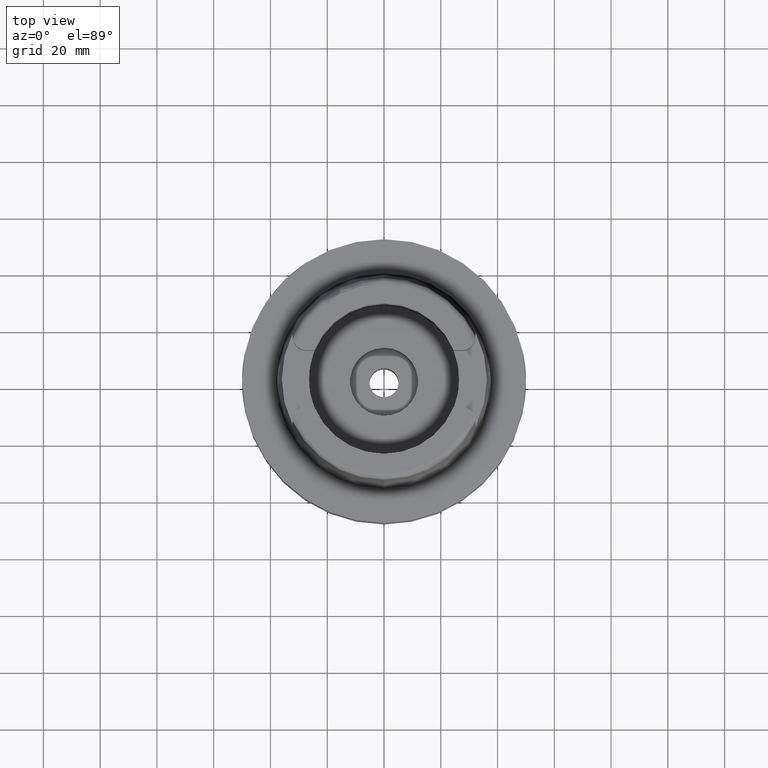
[diagram: clean part render]
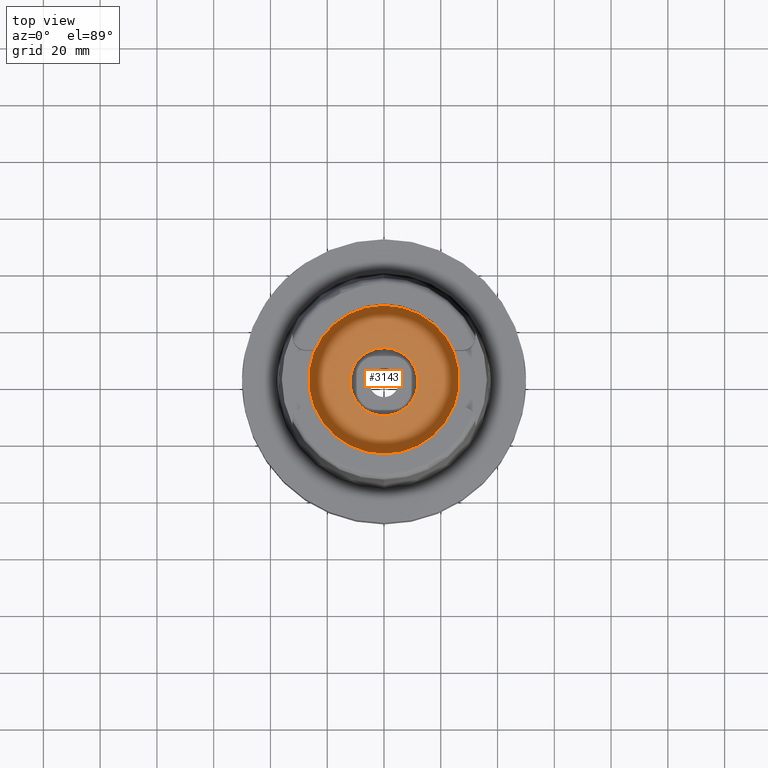
[diagram: same view with one face highlighted and labeled with its STEP entity id]
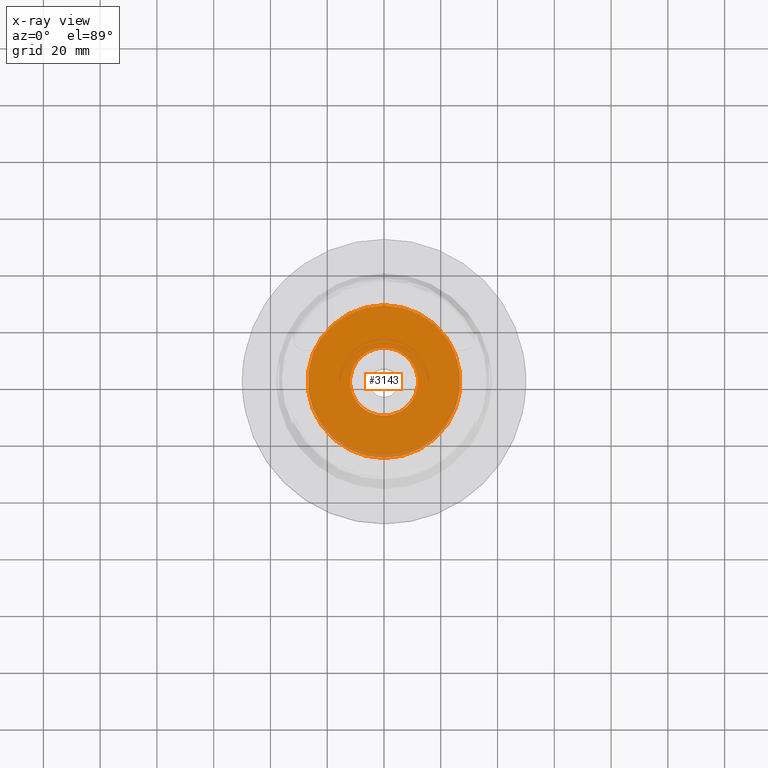
[diagram: x-ray of the same camera — body ghosted, the highlighted face saturated]
A machine part, top view. The second image highlights one B-rep face of the part: STEP entity #3143.
The next image is the same camera in x-ray: the body ghosted, the highlighted face saturated — about 5% of this face is hidden behind the body in this view.
In plain terms, the highlighted planar face has unit normal (0, 0, 1).
Its self-contained STEP definition (entity closure, byte-faithful):
#829=CARTESIAN_POINT('',(0.E0,0.E0,-1.245E1));
#830=DIRECTION('',(0.E0,0.E0,-1.E0));
#831=DIRECTION('',(0.E0,-1.E0,0.E0));
#832=AXIS2_PLACEMENT_3D('',#829,#830,#831);
#837=CARTESIAN_POINT('',(0.E0,0.E0,-1.245E1));
#838=DIRECTION('',(0.E0,0.E0,-1.E0));
#839=DIRECTION('',(0.E0,1.E0,0.E0));
#840=AXIS2_PLACEMENT_3D('',#837,#838,#839);
#845=CARTESIAN_POINT('',(0.E0,0.E0,-1.245E1));
#846=DIRECTION('',(0.E0,0.E0,1.E0));
#847=DIRECTION('',(0.E0,-1.E0,0.E0));
#848=AXIS2_PLACEMENT_3D('',#845,#846,#847);
#853=CARTESIAN_POINT('',(0.E0,0.E0,-1.245E1));
#854=DIRECTION('',(0.E0,0.E0,1.E0));
#855=DIRECTION('',(0.E0,1.E0,0.E0));
#856=AXIS2_PLACEMENT_3D('',#853,#854,#855);
#2377=CARTESIAN_POINT('',(0.E0,2.69E1,-1.245E1));
#2378=VERTEX_POINT('',#2377);
#2379=CARTESIAN_POINT('',(0.E0,-2.69E1,-1.245E1));
#2380=VERTEX_POINT('',#2379);
#2381=CARTESIAN_POINT('',(0.E0,-1.2E1,-1.245E1));
#2382=CARTESIAN_POINT('',(0.E0,1.2E1,-1.245E1));
#2383=VERTEX_POINT('',#2381);
#2384=VERTEX_POINT('',#2382);
#3128=CARTESIAN_POINT('',(0.E0,0.E0,-1.245E1));
#3129=DIRECTION('',(0.E0,0.E0,1.E0));
#3130=DIRECTION('',(0.E0,1.E0,0.E0));
#3131=AXIS2_PLACEMENT_3D('',#3128,#3129,#3130);
#3132=PLANE('',#3131);
#3133=ORIENTED_EDGE('',*,*,#3107,.T.);
#3134=ORIENTED_EDGE('',*,*,#3123,.T.);
#3135=EDGE_LOOP('',(#3133,#3134));
#3136=FACE_OUTER_BOUND('',#3135,.F.);
#3138=ORIENTED_EDGE('',*,*,#3137,.T.);
#3140=ORIENTED_EDGE('',*,*,#3139,.T.);
#3141=EDGE_LOOP('',(#3138,#3140));
#3142=FACE_BOUND('',#3141,.F.);
#833=CIRCLE('',#832,2.69E1);
#841=CIRCLE('',#840,2.69E1);
#849=CIRCLE('',#848,1.2E1);
#857=CIRCLE('',#856,1.2E1);
#3107=EDGE_CURVE('',#2380,#2378,#833,.T.);
#3123=EDGE_CURVE('',#2378,#2380,#841,.T.);
#3137=EDGE_CURVE('',#2383,#2384,#849,.T.);
#3139=EDGE_CURVE('',#2384,#2383,#857,.T.);
#3143=ADVANCED_FACE('',(#3136,#3142),#3132,.T.);